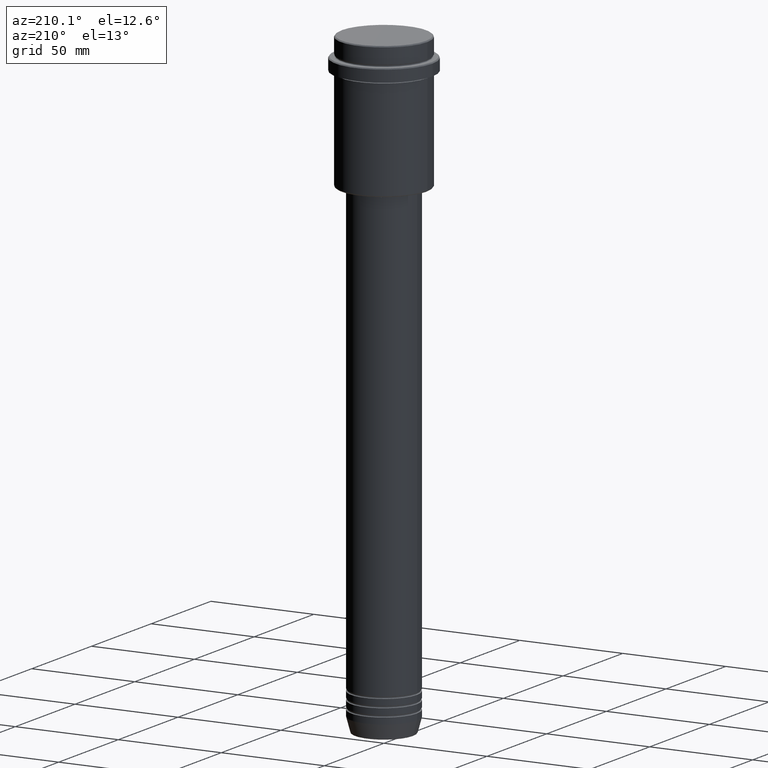
[diagram: clean part render]
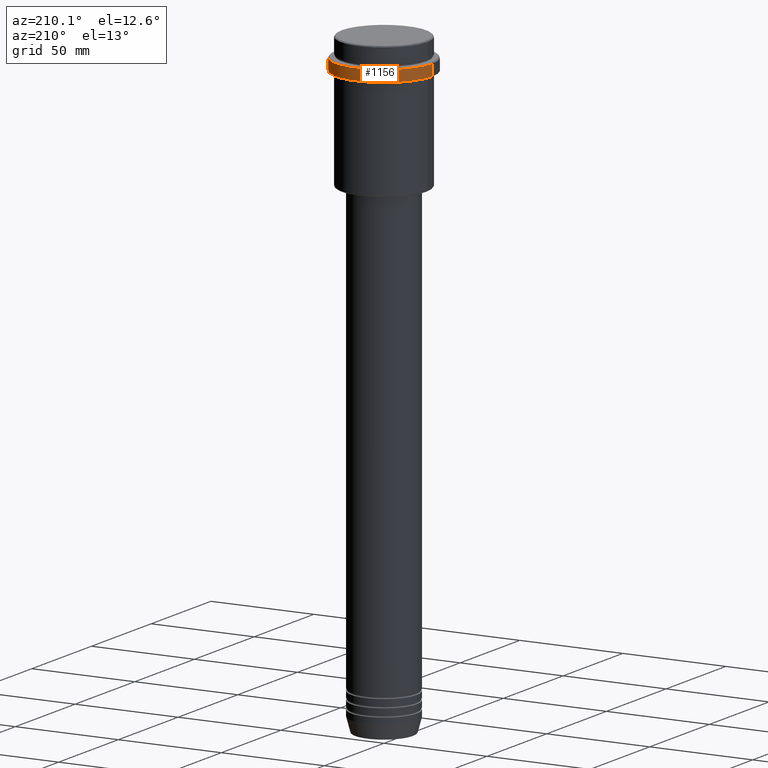
[diagram: same view with one face highlighted and labeled with its STEP entity id]
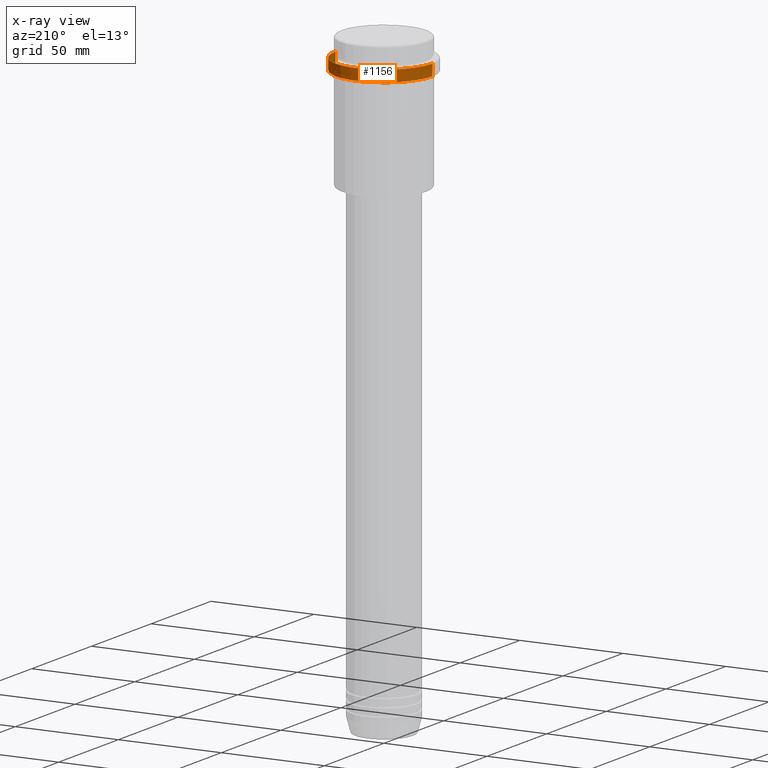
[diagram: x-ray of the same camera — body ghosted, the highlighted face saturated]
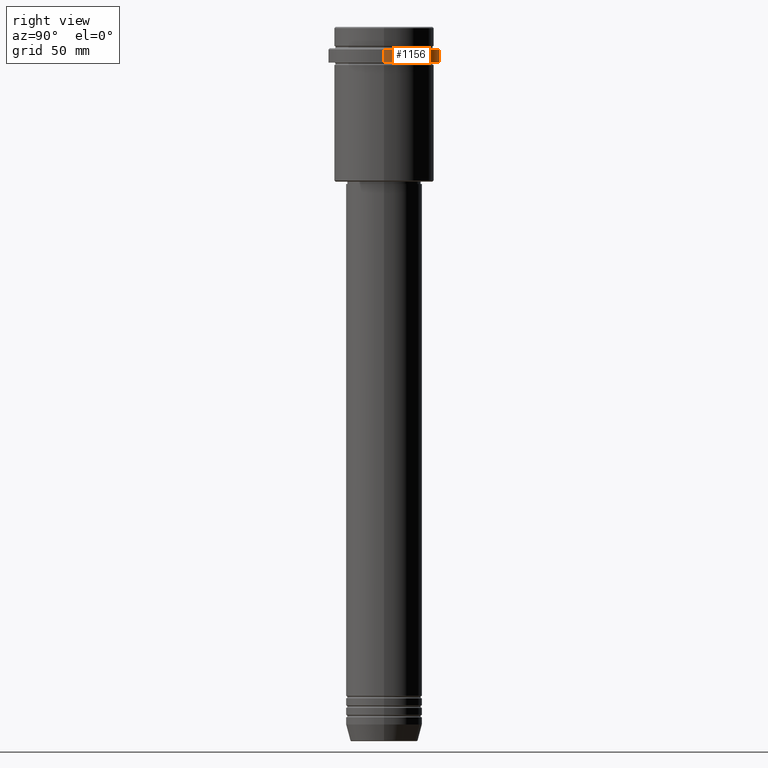
[diagram: same view with one face highlighted and labeled with its STEP entity id]
A machine part, auxiliary view. The second image highlights one B-rep face of the part: STEP entity #1156.
The next image is the same camera in x-ray: the body ghosted, the highlighted face saturated — about 0% of this face is hidden behind the body in this view.
A second angle (right view) of the same face is appended — the face is thin or edge-on in the first view.
In plain terms, the highlighted cylindrical surface (partial cylindrical patch) has radius 23.5 mm, axis along (-0, -0, 1).
Its self-contained STEP definition (entity closure, byte-faithful):
#25 = CIRCLE ( 'NONE', #1098, 23.50000000000000355 ) ;
#26 = CIRCLE ( 'NONE', #146, 23.50000000000000000 ) ;
#41 = CARTESIAN_POINT ( 'NONE',  ( 0.000000000000000000, 0.000000000000000000, -15.00000000000000178 ) ) ;
#46 = DIRECTION ( 'NONE',  ( -0.000000000000000000, -0.000000000000000000, 1.000000000000000000 ) ) ;
#57 = DIRECTION ( 'NONE',  ( 1.000000000000000000, 0.000000000000000000, 0.000000000000000000 ) ) ;
#61 = CARTESIAN_POINT ( 'NONE',  ( 0.000000000000000000, 0.000000000000000000, 0.000000000000000000 ) ) ;
#85 = DIRECTION ( 'NONE',  ( 1.000000000000000000, 0.000000000000000000, 0.000000000000000000 ) ) ;
#135 = LINE ( 'NONE', #1220, #1275 ) ;
#146 = AXIS2_PLACEMENT_3D ( 'NONE', #201, #1150, #85 ) ;
#199 = DIRECTION ( 'NONE',  ( -0.000000000000000000, -0.000000000000000000, 1.000000000000000000 ) ) ;
#201 = CARTESIAN_POINT ( 'NONE',  ( 0.000000000000000000, 0.000000000000000000, -9.499999999999946709 ) ) ;
#243 = CARTESIAN_POINT ( 'NONE',  ( -23.50000000000000711, 2.877919977996281109E-15, -15.00000000000000178 ) ) ;
#267 = EDGE_LOOP ( 'NONE', ( #398, #720, #333, #1172 ) ) ;
#291 = EDGE_CURVE ( 'NONE', #1198, #420, #25, .T. ) ;
#330 = VERTEX_POINT ( 'NONE', #384 ) ;
#333 = ORIENTED_EDGE ( 'NONE', *, *, #695, .T. ) ;
#384 = CARTESIAN_POINT ( 'NONE',  ( -23.50000000000000000, 2.877919977996280320E-15, -9.499999999999946709 ) ) ;
#398 = ORIENTED_EDGE ( 'NONE', *, *, #291, .T. ) ;
#420 = VERTEX_POINT ( 'NONE', #243 ) ;
#498 = DIRECTION ( 'NONE',  ( -0.000000000000000000, -0.000000000000000000, 1.000000000000000000 ) ) ;
#512 = EDGE_CURVE ( 'NONE', #1198, #666, #1249, .T. ) ;
#544 = EDGE_CURVE ( 'NONE', #420, #330, #135, .T. ) ;
#664 = CARTESIAN_POINT ( 'NONE',  ( 23.50000000000000000, 0.000000000000000000, 0.000000000000000000 ) ) ;
#666 = VERTEX_POINT ( 'NONE', #1395 ) ;
#683 = DIRECTION ( 'NONE',  ( -0.000000000000000000, -0.000000000000000000, 1.000000000000000000 ) ) ;
#695 = EDGE_CURVE ( 'NONE', #330, #666, #26, .T. ) ;
#720 = ORIENTED_EDGE ( 'NONE', *, *, #544, .T. ) ;
#749 = AXIS2_PLACEMENT_3D ( 'NONE', #61, #199, #57 ) ;
#809 = CYLINDRICAL_SURFACE ( 'NONE', #749, 23.50000000000000000 ) ;
#937 = FACE_OUTER_BOUND ( 'NONE', #267, .T. ) ;
#1079 = VECTOR ( 'NONE', #683, 1000.000000000000000 ) ;
#1098 = AXIS2_PLACEMENT_3D ( 'NONE', #41, #498, #1239 ) ;
#1150 = DIRECTION ( 'NONE',  ( 0.000000000000000000, 0.000000000000000000, -1.000000000000000000 ) ) ;
#1156 = ADVANCED_FACE ( 'NONE', ( #937 ), #809, .T. ) ;
#1172 = ORIENTED_EDGE ( 'NONE', *, *, #512, .F. ) ;
#1198 = VERTEX_POINT ( 'NONE', #1261 ) ;
#1220 = CARTESIAN_POINT ( 'NONE',  ( -23.50000000000000000, 2.877919977996280320E-15, 0.000000000000000000 ) ) ;
#1239 = DIRECTION ( 'NONE',  ( 1.000000000000000000, 0.000000000000000000, 0.000000000000000000 ) ) ;
#1249 = LINE ( 'NONE', #664, #1079 ) ;
#1261 = CARTESIAN_POINT ( 'NONE',  ( 23.50000000000000355, 0.000000000000000000, -15.00000000000000178 ) ) ;
#1275 = VECTOR ( 'NONE', #46, 1000.000000000000000 ) ;
#1395 = CARTESIAN_POINT ( 'NONE',  ( 23.50000000000000000, 0.000000000000000000, -9.499999999999946709 ) ) ;